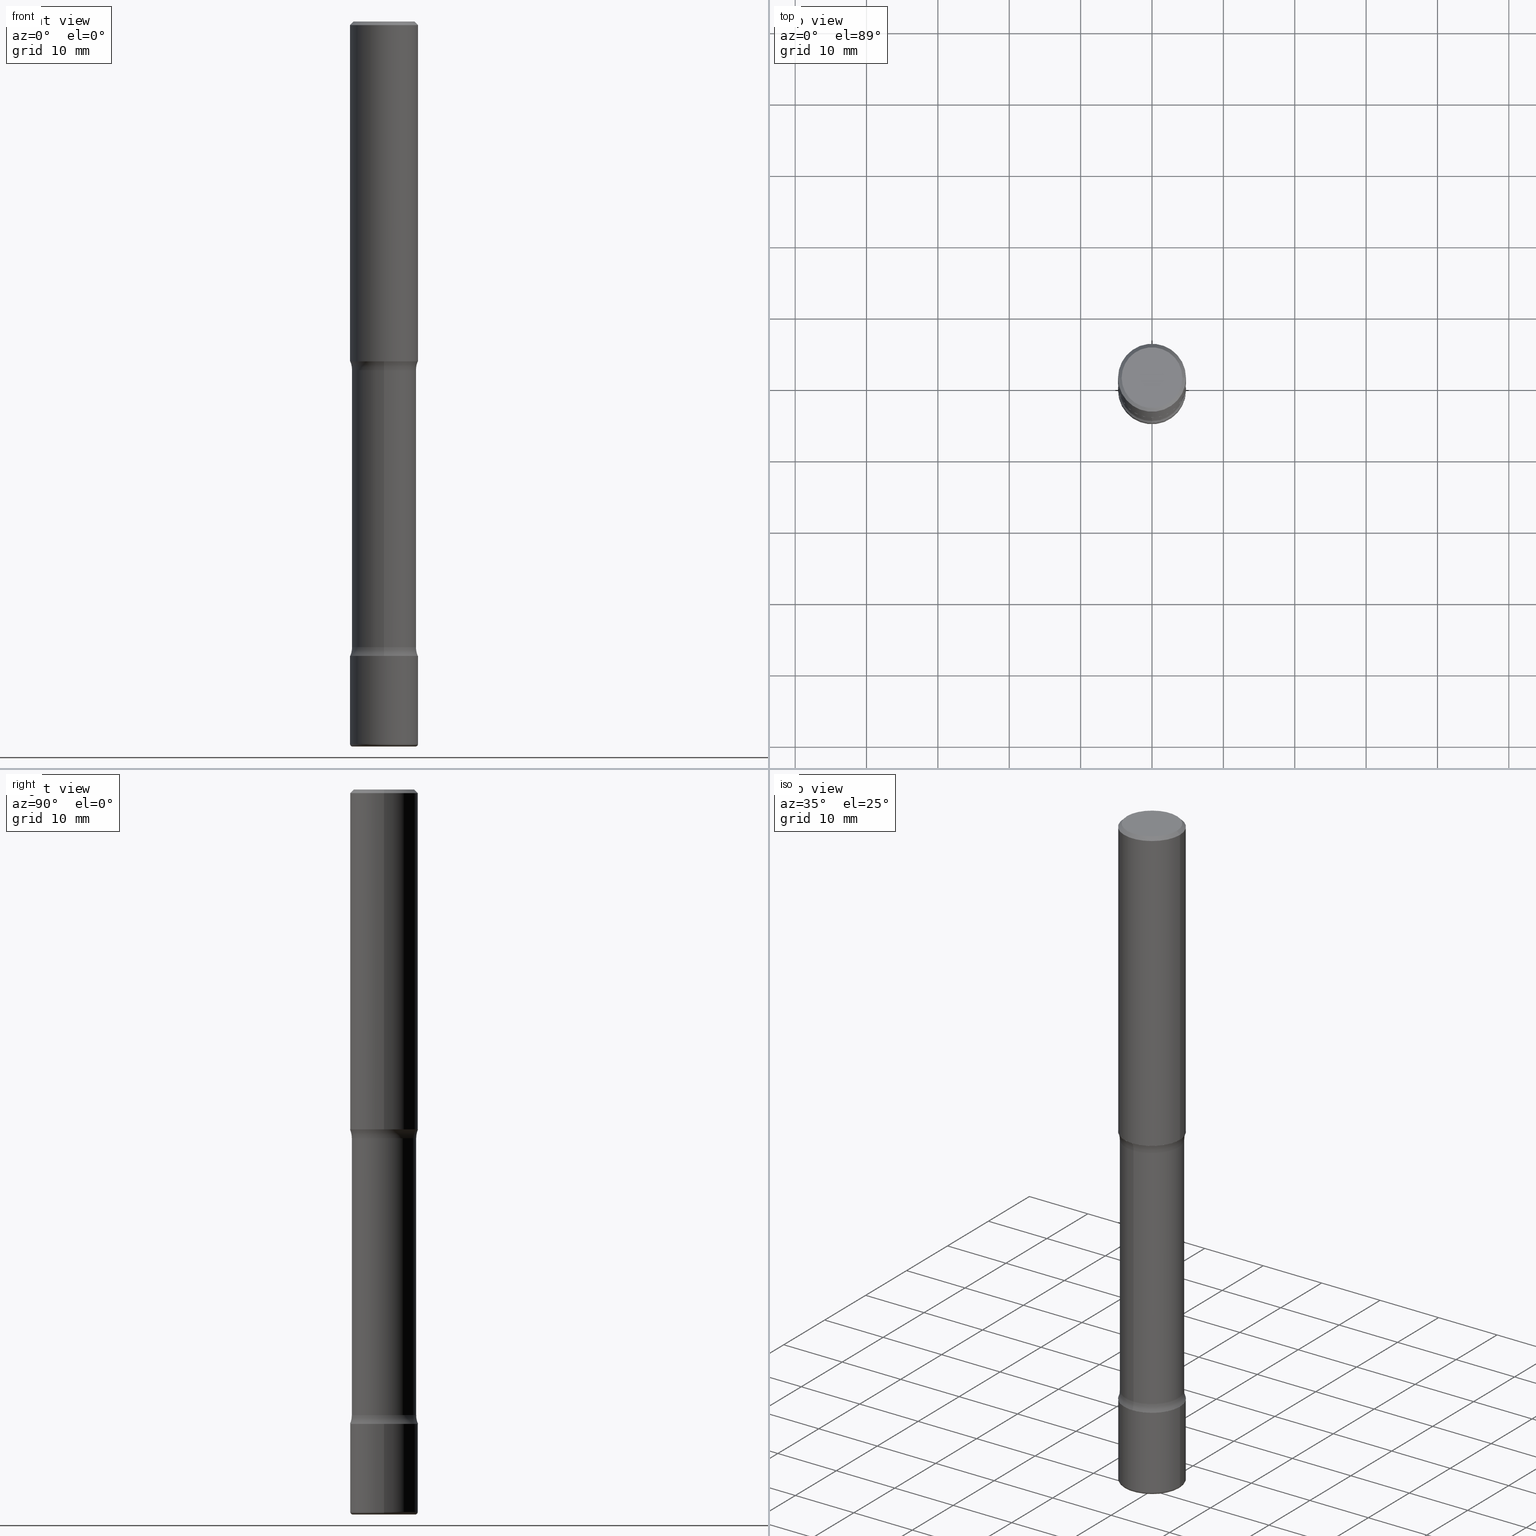
[diagram: canonical four-view strip — front | top / right | iso, engineering-drawing reading convention]
A machine part, canonical four-view strip (front | top / right | iso — engineering-drawing reading convention). The complete STEP part file that produces these views, byte-faithful:
ISO-10303-21;
HEADER;
FILE_DESCRIPTION (( 'STEP AP203' ),
    '1' );
FILE_NAME ('35793.STEP',
    '2024-03-01T23:25:41',
    ( '' ),
    ( '' ),
    'SwSTEP 2.0',
    'SolidWorks 2023',
    '' );
FILE_SCHEMA (( 'CONFIG_CONTROL_DESIGN' ));
ENDSEC;

DATA;
#1 = APPLICATION_PROTOCOL_DEFINITION ( 'international standard', 'config_control_design', 1994, #519 ) ;
#2 = MANIFOLD_SOLID_BREP ( 'Body-Move/Copy2[2]', #513 ) ;
#3 = CALENDAR_DATE ( 2024, 1, 3 ) ;
#4 = DIRECTION ( 'NONE',  ( -2.445468806185136597E-29, 3.491481338843145583E-15, 1.000000000000000000 ) ) ;
#5 = EDGE_CURVE ( 'NONE', #248, #14, #41, .T. ) ;
#6 = AXIS2_PLACEMENT_3D ( 'NONE', #383, #325, #151 ) ;
#7 = APPROVAL_ROLE ( '' ) ;
#8 = LINE ( 'NONE', #174, #49 ) ;
#9 = DIRECTION ( 'NONE',  ( -2.445468806185136597E-29, 3.491481338843145583E-15, 1.000000000000000000 ) ) ;
#10 = DIRECTION ( 'NONE',  ( 1.000000000000000000, -6.982962677686270655E-15, 0.000000000000000000 ) ) ;
#11 = CIRCLE ( 'NONE', #415, 0.1875000000000001943 ) ;
#12 = MANIFOLD_SOLID_BREP ( 'Body-Move/Copy2[4]', #197 ) ;
#13 = CARTESIAN_POINT ( 'NONE',  ( -0.1674999999999999267, 1.204561061900880258E-15, 8.537024980192521029E-18 ) ) ;
#14 = VERTEX_POINT ( 'NONE', #128 ) ;
#15 = FACE_OUTER_BOUND ( 'NONE', #431, .T. ) ;
#16 = ORIENTED_EDGE ( 'NONE', *, *, #39, .T. ) ;
#17 = LINE ( 'NONE', #416, #370 ) ;
#18 = ORIENTED_EDGE ( 'NONE', *, *, #395, .F. ) ;
#19 = ADVANCED_FACE ( 'NONE', ( #30 ), #335, .F. ) ;
#20 = AXIS2_PLACEMENT_3D ( 'NONE', #509, #79, #554 ) ;
#21 = AXIS2_PLACEMENT_3D ( 'NONE', #101, #60, #467 ) ;
#22 = DIRECTION ( 'NONE',  ( 2.612387241267746127E-29, -3.252444639397522477E-15, -1.000000000000000000 ) ) ;
#23 = ORIENTED_EDGE ( 'NONE', *, *, #168, .T. ) ;
#24 = CIRCLE ( 'NONE', #188, 0.1250000000000000278 ) ;
#25 = LINE ( 'NONE', #58, #299 ) ;
#26 = ORIENTED_EDGE ( 'NONE', *, *, #5, .T. ) ;
#27 = DIRECTION ( 'NONE',  ( -1.000000000000000000, 6.982962677686266711E-15, 0.000000000000000000 ) ) ;
#28 = ADVANCED_FACE ( 'NONE', ( #439 ), #81, .F. ) ;
#29 = ADVANCED_FACE ( 'NONE', ( #387 ), #441, .T. ) ;
#30 = FACE_OUTER_BOUND ( 'NONE', #150, .T. ) ;
#31 = VECTOR ( 'NONE', #87, 39.37007874015748143 ) ;
#32 = TOROIDAL_SURFACE ( 'NONE', #6, 0.3025000000000003797, 0.1250000000000000278 ) ;
#33 = VERTEX_POINT ( 'NONE', #477 ) ;
#34 = CIRCLE ( 'NONE', #116, 0.1875000000000001110 ) ;
#35 = LINE ( 'NONE', #301, #83 ) ;
#36 = DIRECTION ( 'NONE',  ( 6.982962677686265922E-15, 1.000000000000000000, -3.252444639397522477E-15 ) ) ;
#37 = CARTESIAN_POINT ( 'NONE',  ( 4.890937612370283668E-31, -6.982962677686305168E-17, -0.02000000000000004205 ) ) ;
#38 = DIRECTION ( 'NONE',  ( 2.445468806185136597E-29, -3.491481338843145583E-15, -1.000000000000000000 ) ) ;
#39 = EDGE_CURVE ( 'NONE', #59, #429, #356, .T. ) ;
#40 = DIRECTION ( 'NONE',  ( -1.000000000000000000, 6.982962677686265922E-15, -4.876176775795935793E-29 ) ) ;
#41 = CIRCLE ( 'NONE', #177, 0.1775000000000003242 ) ;
#42 = ORIENTED_EDGE ( 'NONE', *, *, #249, .F. ) ;
#43 = ORGANIZATION ( 'UNSPECIFIED', 'UNSPECIFIED', '' ) ;
#44 = APPROVAL_STATUS ( 'not_yet_approved' ) ;
#45 = LINE ( 'NONE', #218, #31 ) ;
#46 = APPLICATION_PROTOCOL_DEFINITION ( 'international standard', 'config_control_design', 1994, #210 ) ;
#47 = DIRECTION ( 'NONE',  ( 2.612387241267746127E-29, -3.252444639397522477E-15, -1.000000000000000000 ) ) ;
#48 = DIRECTION ( 'NONE',  ( 1.000000000000000000, -6.860497997771530774E-15, 4.843726234912691247E-29 ) ) ;
#49 = VECTOR ( 'NONE', #212, 39.37007874015748143 ) ;
#50 = APPROVAL_DATE_TIME ( #173, #144 ) ;
#51 = DIRECTION ( 'NONE',  ( 1.000000000000000000, -6.982962677686269077E-15, 0.000000000000000000 ) ) ;
#52 = EDGE_CURVE ( 'NONE', #231, #302, #242, .T. ) ;
#53 = PERSON_AND_ORGANIZATION ( #333, #43 ) ;
#54 = CARTESIAN_POINT ( 'NONE',  ( 9.781875224740546387E-29, -1.396592535537258233E-14, -4.000000000000000000 ) ) ;
#55 = DIRECTION ( 'NONE',  ( -2.445468806185136597E-29, 3.491481338843145583E-15, 1.000000000000000000 ) ) ;
#56 = AXIS2_PLACEMENT_3D ( 'NONE', #70, #340, #36 ) ;
#57 = APPROVAL_PERSON_ORGANIZATION ( #486, #291, #309 ) ;
#58 = CARTESIAN_POINT ( 'NONE',  ( 1.239475875289412093E-15, 0.1774999999999863354, -4.000000000000000888 ) ) ;
#59 = VERTEX_POINT ( 'NONE', #342 ) ;
#60 = DIRECTION ( 'NONE',  ( 1.000000000000000000, -6.860497997771530774E-15, 4.843726234912691247E-29 ) ) ;
#61 = VERTEX_POINT ( 'NONE', #246 ) ;
#62 = DIRECTION ( 'NONE',  ( -2.445468806185136597E-29, 3.491481338843145583E-15, 1.000000000000000000 ) ) ;
#63 = ORIENTED_EDGE ( 'NONE', *, *, #281, .T. ) ;
#64 = CIRCLE ( 'NONE', #156, 0.1874999999999999722 ) ;
#65 = CC_DESIGN_APPROVAL ( #427, ( #518 ) ) ;
#66 = DIRECTION ( 'NONE',  ( -2.445468806185136877E-29, 3.491481338843145188E-15, 1.000000000000000000 ) ) ;
#67 = ORIENTED_EDGE ( 'NONE', *, *, #152, .T. ) ;
#68 = ADVANCED_FACE ( 'NONE', ( #120 ), #405, .T. ) ;
#69 = FACE_OUTER_BOUND ( 'NONE', #324, .T. ) ;
#70 = CARTESIAN_POINT ( 'NONE',  ( 8.439337806507044109E-29, -1.204913773141870678E-14, -3.451010205144336762 ) ) ;
#71 = DIRECTION ( 'NONE',  ( -2.612387241267746127E-29, 3.252444639397522083E-15, 1.000000000000000000 ) ) ;
#72 = DIRECTION ( 'NONE',  ( 2.612387241267746127E-29, -3.252444639397522477E-15, -1.000000000000000000 ) ) ;
#73 = CIRCLE ( 'NONE', #476, 0.1250000000000000278 ) ;
#74 =( LENGTH_UNIT ( ) NAMED_UNIT ( * ) SI_UNIT ( $, .METRE. ) );
#75 = VERTEX_POINT ( 'NONE', #533 ) ;
#76 = CARTESIAN_POINT ( 'NONE',  ( -0.1875000000000001388, -1.975910939003690393E-15, -1.874999999999999778 ) ) ;
#77 = CARTESIAN_POINT ( 'NONE',  ( 4.890937612370283668E-31, -6.982962677686305168E-17, -0.02000000000000004205 ) ) ;
#78 = DIRECTION ( 'NONE',  ( -2.445468806185136877E-29, 3.491481338843145188E-15, 1.000000000000000000 ) ) ;
#79 = DIRECTION ( 'NONE',  ( -1.000000000000000000, 6.982962677686265922E-15, -4.883557194083112340E-29 ) ) ;
#80 = CALENDAR_DATE ( 2024, 1, 3 ) ;
#81 = TOROIDAL_SURFACE ( 'NONE', #56, 0.3025000000000000466, 0.1250000000000000555 ) ;
#82 = CARTESIAN_POINT ( 'NONE',  ( 4.314011554587889791E-29, -6.934962146930033986E-15, -1.874999999999999556 ) ) ;
#83 = VECTOR ( 'NONE', #78, 39.37007874015748143 ) ;
#84 = EDGE_CURVE ( 'NONE', #14, #112, #73, .T. ) ;
#85 = CC_DESIGN_PERSON_AND_ORGANIZATION_ASSIGNMENT ( #403, #451, ( #518 ) ) ;
#86 = PERSON_AND_ORGANIZATION ( #333, #43 ) ;
#87 = DIRECTION ( 'NONE',  ( 2.612387241267746127E-29, -3.252444639397522083E-15, -1.000000000000000000 ) ) ;
#88 = ORIENTED_EDGE ( 'NONE', *, *, #100, .T. ) ;
#89 = COORDINATED_UNIVERSAL_TIME_OFFSET ( 5, 0, .BEHIND. ) ;
#90 = EDGE_CURVE ( 'NONE', #512, #302, #215, .T. ) ;
#91 = DIRECTION ( 'NONE',  ( -6.982962677686266711E-15, -1.000000000000000000, 3.491481338843145583E-15 ) ) ;
#92 = PERSON_AND_ORGANIZATION_ROLE ( 'design_owner' ) ;
#93 = CARTESIAN_POINT ( 'NONE',  ( -2.075300644325846078E-15, -0.3025000000000074851, -1.923989794855662350 ) ) ;
#94 = AXIS2_PLACEMENT_3D ( 'NONE', #200, #552, #394 ) ;
#95 = ORIENTED_EDGE ( 'NONE', *, *, #453, .F. ) ;
#96 = EDGE_CURVE ( 'NONE', #112, #61, #121, .T. ) ;
#97 = AXIS2_PLACEMENT_3D ( 'NONE', #37, #122, #478 ) ;
#98 = PERSON_AND_ORGANIZATION ( #333, #43 ) ;
#99 = LINE ( 'NONE', #447, #480 ) ;
#100 = EDGE_CURVE ( 'NONE', #231, #436, #408, .T. ) ;
#101 = CARTESIAN_POINT ( 'NONE',  ( -2.075300644325803874E-15, -0.3025000000000120925, -3.451010205144335430 ) ) ;
#102 = DIRECTION ( 'NONE',  ( 6.982962677686265922E-15, 1.000000000000000000, -3.078138584410437918E-15 ) ) ;
#103 = ORIENTED_EDGE ( 'NONE', *, *, #211, .F. ) ;
#104 = AXIS2_PLACEMENT_3D ( 'NONE', #411, #365, #529 ) ;
#105 = CC_DESIGN_SECURITY_CLASSIFICATION ( #276, ( #406 ) ) ;
#106 = DIRECTION ( 'NONE',  ( 2.612387241267746127E-29, -3.252444639397522083E-15, -1.000000000000000000 ) ) ;
#107 = ORIENTED_EDGE ( 'NONE', *, *, #96, .T. ) ;
#108 = SHAPE_DEFINITION_REPRESENTATION ( #326, #300 ) ;
#109 = CARTESIAN_POINT ( 'NONE',  ( 0.000000000000000000, 0.000000000000000000, 0.000000000000000000 ) ) ;
#110 = ORIENTED_EDGE ( 'NONE', *, *, #123, .T. ) ;
#111 = DIRECTION ( 'NONE',  ( 1.000000000000000000, -6.982962677686265922E-15, 0.000000000000000000 ) ) ;
#112 = VERTEX_POINT ( 'NONE', #267 ) ;
#113 = LOCAL_TIME ( 18, 25, 41.00000000000000000, #89 ) ;
#114 = CARTESIAN_POINT ( 'NONE',  ( 8.439337806507044109E-29, -1.204913773141870678E-14, -3.451010205144336762 ) ) ;
#115 = ORIENTED_EDGE ( 'NONE', *, *, #206, .T. ) ;
#116 = AXIS2_PLACEMENT_3D ( 'NONE', #175, #452, #51 ) ;
#117 = CARTESIAN_POINT ( 'NONE',  ( 8.559140821647978089E-29, -1.222018468595101092E-14, -3.500000000000000444 ) ) ;
#118 = ORIENTED_EDGE ( 'NONE', *, *, #413, .T. ) ;
#119 = DIRECTION ( 'NONE',  ( 6.982962677686265922E-15, 1.000000000000000000, -3.252444639397522477E-15 ) ) ;
#120 = FACE_OUTER_BOUND ( 'NONE', #375, .T. ) ;
#121 = CIRCLE ( 'NONE', #321, 0.1875000000000005551 ) ;
#122 = DIRECTION ( 'NONE',  ( -2.445468806185136597E-29, 3.491481338843145583E-15, 1.000000000000000000 ) ) ;
#123 = EDGE_CURVE ( 'NONE', #194, #436, #34, .T. ) ;
#124 = ORIENTED_EDGE ( 'NONE', *, *, #152, .F. ) ;
#125 = DIRECTION ( 'NONE',  ( -2.438088387897960049E-29, 3.491481338843145188E-15, 1.000000000000000000 ) ) ;
#126 = ORIENTED_EDGE ( 'NONE', *, *, #181, .T. ) ;
#127 = COORDINATED_UNIVERSAL_TIME_OFFSET ( 5, 0, .BEHIND. ) ;
#128 = CARTESIAN_POINT ( 'NONE',  ( 1.239475875289358844E-15, 0.1774999999999932188, -1.923989794855664126 ) ) ;
#129 = EDGE_CURVE ( 'NONE', #33, #423, #303, .T. ) ;
#130 = LENGTH_MEASURE_WITH_UNIT ( LENGTH_MEASURE( 0.02539999999999999897 ), #74 );
#131 = CARTESIAN_POINT ( 'NONE',  ( 9.745193192647770190E-29, -1.391355313528993565E-14, -3.985000000000000320 ) ) ;
#132 = AXIS2_PLACEMENT_3D ( 'NONE', #117, #159, #247 ) ;
#133 = ORIENTED_EDGE ( 'NONE', *, *, #129, .F. ) ;
#134 =( NAMED_UNIT ( * ) SI_UNIT ( $, .STERADIAN. ) SOLID_ANGLE_UNIT ( ) );
#135 = CARTESIAN_POINT ( 'NONE',  ( 2.112346210000142381E-15, 0.3024999999999932743, -1.923989794855664570 ) ) ;
#136 =( NAMED_UNIT ( * ) PLANE_ANGLE_UNIT ( ) SI_UNIT ( $, .RADIAN. ) );
#137 = DIRECTION ( 'NONE',  ( 2.612387241267746127E-29, -3.252444639397522477E-15, -1.000000000000000000 ) ) ;
#138 = CARTESIAN_POINT ( 'NONE',  ( 0.1875000000000001110, -1.352949018801718751E-14, -3.500000000000000444 ) ) ;
#139 = AXIS2_PLACEMENT_3D ( 'NONE', #270, #283, #465 ) ;
#140 = FACE_OUTER_BOUND ( 'NONE', #305, .T. ) ;
#141 = DIRECTION ( 'NONE',  ( 2.612387241267746127E-29, -3.252444639397522477E-15, -1.000000000000000000 ) ) ;
#142 = ORIENTED_EDGE ( 'NONE', *, *, #5, .F. ) ;
#143 = ADVANCED_FACE ( 'NONE', ( #140 ), #289, .T. ) ;
#144 = APPROVAL ( #252, 'UNSPECIFIED' ) ;
#145 = AXIS2_PLACEMENT_3D ( 'NONE', #77, #38, #397 ) ;
#146 = ORIENTED_EDGE ( 'NONE', *, *, #337, .T. ) ;
#147 = AXIS2_PLACEMENT_3D ( 'NONE', #502, #141, #323 ) ;
#148 = EDGE_CURVE ( 'NONE', #423, #380, #99, .T. ) ;
#149 = FACE_OUTER_BOUND ( 'NONE', #536, .T. ) ;
#150 = EDGE_LOOP ( 'NONE', ( #142, #23, #196, #258 ) ) ;
#151 = DIRECTION ( 'NONE',  ( 6.982962677686265922E-15, 1.000000000000000000, -3.252444639397522477E-15 ) ) ;
#152 = EDGE_CURVE ( 'NONE', #75, #429, #288, .T. ) ;
#153 = ORIENTED_EDGE ( 'NONE', *, *, #239, .T. ) ;
#154 = DIRECTION ( 'NONE',  ( 1.000000000000000000, -6.982962677686265922E-15, 4.876176775795935793E-29 ) ) ;
#155 = ORIENTED_EDGE ( 'NONE', *, *, #148, .F. ) ;
#156 = AXIS2_PLACEMENT_3D ( 'NONE', #484, #311, #255 ) ;
#157 = AXIS2_PLACEMENT_3D ( 'NONE', #114, #343, #119 ) ;
#158 = FACE_OUTER_BOUND ( 'NONE', #296, .T. ) ;
#159 = DIRECTION ( 'NONE',  ( 2.612387241267746127E-29, -3.252444639397522477E-15, -1.000000000000000000 ) ) ;
#160 = ORIENTED_EDGE ( 'NONE', *, *, #84, .T. ) ;
#161 = FACE_OUTER_BOUND ( 'NONE', #274, .T. ) ;
#162 = VERTEX_POINT ( 'NONE', #404 ) ;
#163 = CYLINDRICAL_SURFACE ( 'NONE', #468, 0.1875000000000000833 ) ;
#164 = AXIS2_PLACEMENT_3D ( 'NONE', #184, #226, #542 ) ;
#165 = ORIENTED_EDGE ( 'NONE', *, *, #148, .T. ) ;
#166 = COORDINATED_UNIVERSAL_TIME_OFFSET ( 5, 0, .BEHIND. ) ;
#167 = CARTESIAN_POINT ( 'NONE',  ( 4.441991869621149927E-29, -7.094298742593522572E-15, -1.923989794855663460 ) ) ;
#168 = EDGE_CURVE ( 'NONE', #248, #61, #24, .T. ) ;
#169 = CC_DESIGN_DATE_AND_TIME_ASSIGNMENT ( #366, #491, ( #518 ) ) ;
#170 = CARTESIAN_POINT ( 'NONE',  ( -0.1874999999999999722, -1.258128550573974937E-14, -3.985000000000000320 ) ) ;
#171 = SECURITY_CLASSIFICATION_LEVEL ( 'unclassified' ) ;
#172 = CARTESIAN_POINT ( 'NONE',  ( 8.431160506614718513E-29, -1.206084809028752233E-14, -3.451010205144336762 ) ) ;
#173 = DATE_AND_TIME ( #80, #398 ) ;
#174 = CARTESIAN_POINT ( 'NONE',  ( 0.1875000000000000833, -1.309305502066175600E-15, 9.142831454617383816E-30 ) ) ;
#175 = CARTESIAN_POINT ( 'NONE',  ( 8.559140821647978089E-29, -1.222018468595101092E-14, -3.500000000000000444 ) ) ;
#176 = CARTESIAN_POINT ( 'NONE',  ( 0.1725000000000000977, -1.511811419719081728E-14, -3.985000000000000320 ) ) ;
#177 = AXIS2_PLACEMENT_3D ( 'NONE', #167, #352, #251 ) ;
#178 = LOCAL_TIME ( 18, 25, 41.00000000000000000, #127 ) ;
#179 = CARTESIAN_POINT ( 'NONE',  ( 1.239475875289396118E-15, 0.1774999999999878897, -3.451010205144337206 ) ) ;
#180 = AXIS2_PLACEMENT_3D ( 'NONE', #172, #47, #314 ) ;
#181 = EDGE_CURVE ( 'NONE', #504, #479, #11, .T. ) ;
#182 = ORIENTED_EDGE ( 'NONE', *, *, #395, .T. ) ;
#183 = CC_DESIGN_PERSON_AND_ORGANIZATION_ASSIGNMENT ( #98, #256, ( #406 ) ) ;
#184 = CARTESIAN_POINT ( 'NONE',  ( 6.492893269684092535E-29, -3.814679516666635883E-15, -1.874999999999999556 ) ) ;
#185 = ORIENTED_EDGE ( 'NONE', *, *, #268, .T. ) ;
#186 = DIRECTION ( 'NONE',  ( 0.7071067811865476838, -7.319954787623257623E-15, -0.7071067811865473507 ) ) ;
#187 = ORIENTED_EDGE ( 'NONE', *, *, #510, .F. ) ;
#188 = AXIS2_PLACEMENT_3D ( 'NONE', #93, #48, #488 ) ;
#189 = CIRCLE ( 'NONE', #498, 0.1774999999999999634 ) ;
#190 = DIRECTION ( 'NONE',  ( -2.445468806185136597E-29, 3.491481338843145583E-15, 1.000000000000000000 ) ) ;
#191 = EDGE_LOOP ( 'NONE', ( #556, #146, #538, #332 ) ) ;
#192 = DESIGN_CONTEXT ( 'detailed design', #210, 'design' ) ;
#193 = DIRECTION ( 'NONE',  ( 1.000000000000000000, -6.982962677686265922E-15, 4.876502603340347460E-29 ) ) ;
#194 = VERTEX_POINT ( 'NONE', #138 ) ;
#195 = DIRECTION ( 'NONE',  ( 2.612387241267746127E-29, -3.252444639397522477E-15, -1.000000000000000000 ) ) ;
#196 = ORIENTED_EDGE ( 'NONE', *, *, #269, .T. ) ;
#197 = CLOSED_SHELL ( 'NONE', ( #443, #521, #19, #376, #355, #503, #28, #386 ) ) ;
#198 = CIRCLE ( 'NONE', #298, 0.1875000000000000555 ) ;
#199 = TOROIDAL_SURFACE ( 'NONE', #157, 0.3025000000000000466, 0.1250000000000000555 ) ;
#200 = CARTESIAN_POINT ( 'NONE',  ( 9.745193192647770190E-29, -1.391355313528993565E-14, -3.985000000000000320 ) ) ;
#201 = CC_DESIGN_PERSON_AND_ORGANIZATION_ASSIGNMENT ( #315, #92, ( #421 ) ) ;
#202 = CARTESIAN_POINT ( 'NONE',  ( 0.000000000000000000, 0.000000000000000000, 0.000000000000000000 ) ) ;
#203 = ORIENTED_EDGE ( 'NONE', *, *, #100, .F. ) ;
#204 = CARTESIAN_POINT ( 'NONE',  ( -0.1725000000000000977, -1.268786691610376213E-14, -3.985000000000000320 ) ) ;
#205 = ORIENTED_EDGE ( 'NONE', *, *, #338, .T. ) ;
#206 = EDGE_CURVE ( 'NONE', #512, #162, #317, .T. ) ;
#207 = CARTESIAN_POINT ( 'NONE',  ( -1.286343374582076971E-15, -0.1875000000000123512, -3.500000000000000000 ) ) ;
#208 = AXIS2_PLACEMENT_3D ( 'NONE', #236, #430, #27 ) ;
#209 = ORIENTED_EDGE ( 'NONE', *, *, #123, .F. ) ;
#210 = APPLICATION_CONTEXT ( 'configuration controlled 3d designs of mechanical parts and assemblies' ) ;
#211 = EDGE_CURVE ( 'NONE', #265, #380, #64, .T. ) ;
#212 = DIRECTION ( 'NONE',  ( -2.445468806185136877E-29, 3.491481338843145188E-15, 1.000000000000000000 ) ) ;
#213 = CALENDAR_DATE ( 2024, 1, 3 ) ;
#214 = DIRECTION ( 'NONE',  ( -6.982962677686265133E-15, -1.000000000000000000, 0.000000000000000000 ) ) ;
#215 = CIRCLE ( 'NONE', #377, 0.01499999999999980516 ) ;
#216 = CALENDAR_DATE ( 2024, 1, 3 ) ;
#217 = AXIS2_PLACEMENT_3D ( 'NONE', #54, #369, #10 ) ;
#218 = CARTESIAN_POINT ( 'NONE',  ( -1.217738394604349018E-15, -0.1775000000000139799, -4.000000000000000000 ) ) ;
#219 = AXIS2_PLACEMENT_3D ( 'NONE', #473, #399, #432 ) ;
#220 = CARTESIAN_POINT ( 'NONE',  ( 4.585254011597130558E-29, -6.546527510330897918E-15, -1.874999999999999778 ) ) ;
#221 = DIRECTION ( 'NONE',  ( -1.000000000000000000, 6.982962677686265922E-15, -4.883557194083112340E-29 ) ) ;
#222 = EDGE_CURVE ( 'NONE', #302, #231, #198, .T. ) ;
#223 = CC_DESIGN_PERSON_AND_ORGANIZATION_ASSIGNMENT ( #53, #446, ( #406 ) ) ;
#224 = CARTESIAN_POINT ( 'NONE',  ( 0.000000000000000000, 0.000000000000000000, 0.000000000000000000 ) ) ;
#225 = EDGE_LOOP ( 'NONE', ( #115, #418, #284, #237 ) ) ;
#226 = DIRECTION ( 'NONE',  ( 2.612387241267746127E-29, -3.252444639397522083E-15, -1.000000000000000000 ) ) ;
#227 = EDGE_LOOP ( 'NONE', ( #328, #362, #16, #182 ) ) ;
#228 = CARTESIAN_POINT ( 'NONE',  ( -0.1874999999999999722, 1.239475875289311710E-15, -0.02000000000000004205 ) ) ;
#229 = ORIENTED_EDGE ( 'NONE', *, *, #510, .T. ) ;
#230 = DIRECTION ( 'NONE',  ( 1.000000000000000000, -6.982962677686266711E-15, 4.876176775795935793E-29 ) ) ;
#231 = VERTEX_POINT ( 'NONE', #170 ) ;
#232 = EDGE_CURVE ( 'NONE', #162, #512, #345, .T. ) ;
#233 = AXIS2_PLACEMENT_3D ( 'NONE', #224, #381, #419 ) ;
#234 = CARTESIAN_POINT ( 'NONE',  ( 0.1874999999999999722, -1.522285863735611381E-14, -3.985000000000000320 ) ) ;
#235 = ORIENTED_EDGE ( 'NONE', *, *, #337, .F. ) ;
#236 = CARTESIAN_POINT ( 'NONE',  ( 4.890937612370283668E-31, -6.982962677686305168E-17, -0.02000000000000004205 ) ) ;
#237 = ORIENTED_EDGE ( 'NONE', *, *, #90, .F. ) ;
#238 = DIRECTION ( 'NONE',  ( 2.438088387897960049E-29, -3.491481338843145188E-15, -1.000000000000000000 ) ) ;
#239 = EDGE_CURVE ( 'NONE', #248, #75, #45, .T. ) ;
#240 = CC_DESIGN_DATE_AND_TIME_ASSIGNMENT ( #307, #558, ( #276 ) ) ;
#241 = CARTESIAN_POINT ( 'NONE',  ( 1.862889787094097068E-28, -1.296485384755703517E-15, -4.000000000000000000 ) ) ;
#242 = CIRCLE ( 'NONE', #94, 0.1875000000000000555 ) ;
#243 = CIRCLE ( 'NONE', #379, 0.1875000000000005551 ) ;
#244 = CC_DESIGN_APPROVAL ( #144, ( #276 ) ) ;
#245 = DIRECTION ( 'NONE',  ( 6.982962677686266711E-15, 1.000000000000000000, -3.078138584410434763E-15 ) ) ;
#246 = CARTESIAN_POINT ( 'NONE',  ( -1.286343374582122528E-15, -0.1875000000000074662, -1.874999999999998890 ) ) ;
#247 = DIRECTION ( 'NONE',  ( 6.982962677686266711E-15, 1.000000000000000000, -2.913971193241879189E-15 ) ) ;
#248 = VERTEX_POINT ( 'NONE', #257 ) ;
#249 = EDGE_CURVE ( 'NONE', #504, #265, #8, .T. ) ;
#250 = DIRECTION ( 'NONE',  ( 1.000000000000000000, -6.982962677686266711E-15, 4.876176775795935793E-29 ) ) ;
#251 = DIRECTION ( 'NONE',  ( 6.982962677686265133E-15, 1.000000000000000000, -3.078138584410432002E-15 ) ) ;
#252 = APPROVAL_STATUS ( 'not_yet_approved' ) ;
#253 = AXIS2_PLACEMENT_3D ( 'NONE', #109, #62, #230 ) ;
#254 = AXIS2_PLACEMENT_3D ( 'NONE', #280, #535, #111 ) ;
#255 = DIRECTION ( 'NONE',  ( 1.000000000000000000, -6.982962677686266711E-15, 0.000000000000000000 ) ) ;
#256 = PERSON_AND_ORGANIZATION_ROLE ( 'creator' ) ;
#257 = CARTESIAN_POINT ( 'NONE',  ( -1.252040884593263284E-15, -0.1775000000000074296, -1.923989794855663016 ) ) ;
#258 = ORIENTED_EDGE ( 'NONE', *, *, #84, .F. ) ;
#259 = PERSON_AND_ORGANIZATION ( #333, #43 ) ;
#260 = DIRECTION ( 'NONE',  ( -2.445468806185136597E-29, 3.491481338843145583E-15, 1.000000000000000000 ) ) ;
#261 = AXIS2_PLACEMENT_3D ( 'NONE', #241, #433, #549 ) ;
#262 = APPROVAL_ROLE ( '' ) ;
#263 = CARTESIAN_POINT ( 'NONE',  ( 4.314011554587889791E-29, -6.934962146930033986E-15, -1.874999999999999556 ) ) ;
#264 = CIRCLE ( 'NONE', #450, 0.01499999999999980516 ) ;
#265 = VERTEX_POINT ( 'NONE', #402 ) ;
#266 = PERSON_AND_ORGANIZATION_ROLE ( 'classification_officer' ) ;
#267 = CARTESIAN_POINT ( 'NONE',  ( 1.309305502066221551E-15, 0.1874999999999935885, -1.875000000000000000 ) ) ;
#268 = EDGE_CURVE ( 'NONE', #14, #248, #358, .T. ) ;
#269 = EDGE_CURVE ( 'NONE', #61, #112, #243, .T. ) ;
#270 = CARTESIAN_POINT ( 'NONE',  ( 9.865334442281852273E-29, -1.384640700564977196E-14, -4.000000000000000888 ) ) ;
#271 = EDGE_LOOP ( 'NONE', ( #287, #26, #336, #124 ) ) ;
#272 = FACE_OUTER_BOUND ( 'NONE', #499, .T. ) ;
#273 = CLOSED_SHELL ( 'NONE', ( #437, #306, #29, #143, #349, #534 ) ) ;
#274 = EDGE_LOOP ( 'NONE', ( #63, #426 ) ) ;
#275 = AXIS2_PLACEMENT_3D ( 'NONE', #445, #260, #527 ) ;
#276 = SECURITY_CLASSIFICATION ( '', '', #171 ) ;
#277 = UNCERTAINTY_MEASURE_WITH_UNIT (LENGTH_MEASURE( 1.000000000000000082E-05 ), #401, 'distance_accuracy_value', 'NONE');
#278 = CARTESIAN_POINT ( 'NONE',  ( 8.559140821647978089E-29, -1.222018468595101092E-14, -3.500000000000000444 ) ) ;
#279 = ORIENTED_EDGE ( 'NONE', *, *, #413, .F. ) ;
#280 = CARTESIAN_POINT ( 'NONE',  ( 4.585254011597130558E-29, -6.546527510330897918E-15, -1.874999999999999778 ) ) ;
#281 = EDGE_CURVE ( 'NONE', #423, #33, #310, .T. ) ;
#282 = ORIENTED_EDGE ( 'NONE', *, *, #470, .F. ) ;
#283 = DIRECTION ( 'NONE',  ( 2.612387241267746127E-29, -3.252444639397522477E-15, -1.000000000000000000 ) ) ;
#284 = ORIENTED_EDGE ( 'NONE', *, *, #222, .F. ) ;
#285 = AXIS2_PLACEMENT_3D ( 'NONE', #428, #497, #544 ) ;
#286 = DIRECTION ( 'NONE',  ( 7.105427357601001859E-15, 1.000000000000000000, -3.491481338843145583E-15 ) ) ;
#287 = ORIENTED_EDGE ( 'NONE', *, *, #239, .F. ) ;
#288 = CIRCLE ( 'NONE', #180, 0.1774999999999999634 ) ;
#289 = TOROIDAL_SURFACE ( 'NONE', #461, 0.1725000000000000977, 0.01499999999999982250 ) ;
#290 = EDGE_CURVE ( 'NONE', #545, #75, #557, .T. ) ;
#291 = APPROVAL ( #44, 'UNSPECIFIED' ) ;
#292 = PLANE ( 'NONE',  #219 ) ;
#293 = ORIENTED_EDGE ( 'NONE', *, *, #489, .T. ) ;
#294 = EDGE_CURVE ( 'NONE', #479, #380, #456, .T. ) ;
#295 = FACE_OUTER_BOUND ( 'NONE', #412, .T. ) ;
#296 = EDGE_LOOP ( 'NONE', ( #187, #541, #67, #330 ) ) ;
#297 = AXIS2_PLACEMENT_3D ( 'NONE', #308, #72, #344 ) ;
#298 = AXIS2_PLACEMENT_3D ( 'NONE', #131, #360, #449 ) ;
#299 = VECTOR ( 'NONE', #106, 39.37007874015748143 ) ;
#300 = ADVANCED_BREP_SHAPE_REPRESENTATION ( '35793', ( #391, #2, #12, #495 ), #319 ) ;
#301 = CARTESIAN_POINT ( 'NONE',  ( 0.1875000000000000833, -1.309305502066175600E-15, 9.142831454617383816E-30 ) ) ;
#302 = VERTEX_POINT ( 'NONE', #234 ) ;
#303 = CIRCLE ( 'NONE', #409, 0.1674999999999999267 ) ;
#304 = CARTESIAN_POINT ( 'NONE',  ( 9.865334442281852273E-29, -1.384640700564977196E-14, -4.000000000000000888 ) ) ;
#305 = EDGE_LOOP ( 'NONE', ( #95, #520, #524, #384 ) ) ;
#306 = ADVANCED_FACE ( 'NONE', ( #374 ), #320, .T. ) ;
#307 = DATE_AND_TIME ( #454, #442 ) ;
#308 = CARTESIAN_POINT ( 'NONE',  ( 4.442756628751107666E-29, -7.093203563992037235E-15, -1.923989794855663460 ) ) ;
#309 = APPROVAL_ROLE ( '' ) ;
#310 = CIRCLE ( 'NONE', #496, 0.1674999999999999267 ) ;
#311 = DIRECTION ( 'NONE',  ( -2.445468806185136597E-29, 3.491481338843145583E-15, 1.000000000000000000 ) ) ;
#312 = ORIENTED_EDGE ( 'NONE', *, *, #367, .T. ) ;
#313 = APPROVAL_STATUS ( 'not_yet_approved' ) ;
#314 = DIRECTION ( 'NONE',  ( 6.982962677686265922E-15, 1.000000000000000000, -3.078138584410437918E-15 ) ) ;
#315 = PERSON_AND_ORGANIZATION ( #333, #43 ) ;
#316 = CARTESIAN_POINT ( 'NONE',  ( -0.1875000000000000833, 1.332267629550188440E-15, -9.223003294227952194E-30 ) ) ;
#317 = CIRCLE ( 'NONE', #217, 0.1725000000000000699 ) ;
#318 = DIRECTION ( 'NONE',  ( 1.000000000000000000, -6.982962677686228845E-15, 0.000000000000000000 ) ) ;
#319 =( GEOMETRIC_REPRESENTATION_CONTEXT ( 3 ) GLOBAL_UNCERTAINTY_ASSIGNED_CONTEXT ( ( #277 ) ) GLOBAL_UNIT_ASSIGNED_CONTEXT ( ( #401, #136, #134 ) ) REPRESENTATION_CONTEXT ( 'NONE', 'WORKASPACE' ) );
#320 = TOROIDAL_SURFACE ( 'NONE', #285, 0.1725000000000000977, 0.01499999999999982250 ) ;
#321 = AXIS2_PLACEMENT_3D ( 'NONE', #82, #137, #353 ) ;
#322 = FACE_OUTER_BOUND ( 'NONE', #271, .T. ) ;
#323 = DIRECTION ( 'NONE',  ( 6.982962677686266711E-15, 1.000000000000000000, -2.913971193241879189E-15 ) ) ;
#324 = EDGE_LOOP ( 'NONE', ( #279, #373, #165, #293 ) ) ;
#325 = DIRECTION ( 'NONE',  ( 2.612387241267746127E-29, -3.252444639397522477E-15, -1.000000000000000000 ) ) ;
#326 = PRODUCT_DEFINITION_SHAPE ( 'NONE', 'NONE',  #518 ) ;
#327 = CIRCLE ( 'NONE', #132, 0.1875000000000001110 ) ;
#328 = ORIENTED_EDGE ( 'NONE', *, *, #290, .F. ) ;
#329 = CARTESIAN_POINT ( 'NONE',  ( -0.1875000000000000833, 1.332267629550188440E-15, -9.223003294227952194E-30 ) ) ;
#330 = ORIENTED_EDGE ( 'NONE', *, *, #39, .F. ) ;
#331 = DIRECTION ( 'NONE',  ( 2.612387241267746127E-29, -3.252444639397522477E-15, -1.000000000000000000 ) ) ;
#332 = ORIENTED_EDGE ( 'NONE', *, *, #489, .F. ) ;
#333 = PERSON ( 'UNSPECIFIED', 'UNSPECIFIED', 'UNSPECIFIED', ('UNSPECIFIED'), ('UNSPECIFIED'), ('UNSPECIFIED') ) ;
#334 = DIRECTION ( 'NONE',  ( 1.000000000000000000, -6.982962677686266711E-15, 4.876176775795935793E-29 ) ) ;
#335 = TOROIDAL_SURFACE ( 'NONE', #297, 0.3025000000000003797, 0.1250000000000000278 ) ;
#336 = ORIENTED_EDGE ( 'NONE', *, *, #363, .T. ) ;
#337 = EDGE_CURVE ( 'NONE', #479, #504, #371, .T. ) ;
#338 = EDGE_CURVE ( 'NONE', #436, #194, #515, .T. ) ;
#339 = AXIS2_PLACEMENT_3D ( 'NONE', #440, #238, #40 ) ;
#340 = DIRECTION ( 'NONE',  ( 2.612387241267746127E-29, -3.252444639397522477E-15, -1.000000000000000000 ) ) ;
#341 = CYLINDRICAL_SURFACE ( 'NONE', #346, 0.1875000000000000833 ) ;
#342 = CARTESIAN_POINT ( 'NONE',  ( 1.309305502066261191E-15, 0.1874999999999878708, -3.500000000000000888 ) ) ;
#343 = DIRECTION ( 'NONE',  ( 2.612387241267746127E-29, -3.252444639397522477E-15, -1.000000000000000000 ) ) ;
#344 = DIRECTION ( 'NONE',  ( 6.982962677686265922E-15, 1.000000000000000000, -3.252444639397522477E-15 ) ) ;
#345 = CIRCLE ( 'NONE', #275, 0.1725000000000000699 ) ;
#346 = AXIS2_PLACEMENT_3D ( 'NONE', #555, #435, #334 ) ;
#347 = VECTOR ( 'NONE', #66, 39.37007874015748143 ) ;
#348 = PLANE ( 'NONE',  #339 ) ;
#349 = ADVANCED_FACE ( 'NONE', ( #272 ), #462, .T. ) ;
#350 = EDGE_LOOP ( 'NONE', ( #507, #235 ) ) ;
#351 = COORDINATED_UNIVERSAL_TIME_OFFSET ( 5, 0, .BEHIND. ) ;
#352 = DIRECTION ( 'NONE',  ( 2.612387241267746127E-29, -3.252444639397522477E-15, -1.000000000000000000 ) ) ;
#353 = DIRECTION ( 'NONE',  ( 6.982962677686265922E-15, 1.000000000000000000, -2.913971193241872089E-15 ) ) ;
#354 = ORIENTED_EDGE ( 'NONE', *, *, #211, .T. ) ;
#355 = ADVANCED_FACE ( 'NONE', ( #15 ), #459, .F. ) ;
#356 = CIRCLE ( 'NONE', #20, 0.1250000000000000555 ) ;
#357 = DIRECTION ( 'NONE',  ( 1.000000000000000000, 0.000000000000000000, 0.000000000000000000 ) ) ;
#358 = CIRCLE ( 'NONE', #104, 0.1775000000000003242 ) ;
#359 = APPROVAL_PERSON_ORGANIZATION ( #448, #144, #7 ) ;
#360 = DIRECTION ( 'NONE',  ( -2.445468806185136597E-29, 3.491481338843145583E-15, 1.000000000000000000 ) ) ;
#361 = VECTOR ( 'NONE', #455, 39.37007874015748143 ) ;
#362 = ORIENTED_EDGE ( 'NONE', *, *, #367, .F. ) ;
#363 = EDGE_CURVE ( 'NONE', #14, #429, #25, .T. ) ;
#364 = COORDINATED_UNIVERSAL_TIME_OFFSET ( 5, 0, .BEHIND. ) ;
#365 = DIRECTION ( 'NONE',  ( 2.612387241267746127E-29, -3.252444639397522477E-15, -1.000000000000000000 ) ) ;
#366 = DATE_AND_TIME ( #213, #178 ) ;
#367 = EDGE_CURVE ( 'NONE', #59, #545, #434, .T. ) ;
#368 = DIRECTION ( 'NONE',  ( 1.000000000000000000, -6.982962677686265922E-15, 0.000000000000000000 ) ) ;
#369 = DIRECTION ( 'NONE',  ( -2.445468806185136597E-29, 3.491481338843145583E-15, 1.000000000000000000 ) ) ;
#370 = VECTOR ( 'NONE', #186, 39.37007874015748143 ) ;
#371 = CIRCLE ( 'NONE', #254, 0.1875000000000001943 ) ;
#372 = CARTESIAN_POINT ( 'NONE',  ( -2.087702828670439639E-46, 2.980686340760894400E-32, 8.537024980200822558E-18 ) ) ;
#373 = ORIENTED_EDGE ( 'NONE', *, *, #281, .F. ) ;
#374 = FACE_OUTER_BOUND ( 'NONE', #225, .T. ) ;
#375 = EDGE_LOOP ( 'NONE', ( #133, #118, #354, #155 ) ) ;
#376 = ADVANCED_FACE ( 'NONE', ( #537 ), #32, .F. ) ;
#377 = AXIS2_PLACEMENT_3D ( 'NONE', #176, #91, #318 ) ;
#378 = CARTESIAN_POINT ( 'NONE',  ( -0.1875000000000001110, -1.173460128107028622E-14, -3.500000000000000444 ) ) ;
#379 = AXIS2_PLACEMENT_3D ( 'NONE', #263, #22, #540 ) ;
#380 = VERTEX_POINT ( 'NONE', #228 ) ;
#381 = DIRECTION ( 'NONE',  ( -2.445468806185136597E-29, 3.491481338843145583E-15, 1.000000000000000000 ) ) ;
#382 = EDGE_LOOP ( 'NONE', ( #185, #153, #18, #560 ) ) ;
#383 = CARTESIAN_POINT ( 'NONE',  ( 4.442756628751107666E-29, -7.093203563992037235E-15, -1.923989794855663460 ) ) ;
#384 = ORIENTED_EDGE ( 'NONE', *, *, #52, .F. ) ;
#385 = DIRECTION ( 'NONE',  ( -6.982962677686265922E-15, -1.000000000000000000, 3.252444639397522083E-15 ) ) ;
#386 = ADVANCED_FACE ( 'NONE', ( #322 ), #493, .T. ) ;
#387 = FACE_OUTER_BOUND ( 'NONE', #464, .T. ) ;
#388 = APPROVAL_PERSON_ORGANIZATION ( #86, #427, #262 ) ;
#389 = DIRECTION ( 'NONE',  ( -1.000000000000000000, 7.105427357600953738E-15, 0.000000000000000000 ) ) ;
#390 = ORIENTED_EDGE ( 'NONE', *, *, #206, .F. ) ;
#391 = MANIFOLD_SOLID_BREP ( 'Body-Move/Copy2[1]', #273 ) ;
#392 = DIMENSIONAL_EXPONENTS ( 1.000000000000000000, 0.000000000000000000, 0.000000000000000000, 0.000000000000000000, 0.000000000000000000, 0.000000000000000000, 0.000000000000000000 ) ;
#393 = FACE_OUTER_BOUND ( 'NONE', #501, .T. ) ;
#394 = DIRECTION ( 'NONE',  ( 1.000000000000000000, -6.982962677686270655E-15, 0.000000000000000000 ) ) ;
#395 = EDGE_CURVE ( 'NONE', #429, #75, #189, .T. ) ;
#396 = FACE_OUTER_BOUND ( 'NONE', #191, .T. ) ;
#397 = DIRECTION ( 'NONE',  ( -1.000000000000000000, 6.982962677686266711E-15, 0.000000000000000000 ) ) ;
#398 = LOCAL_TIME ( 18, 25, 41.00000000000000000, #364 ) ;
#399 = DIRECTION ( 'NONE',  ( 2.438088387897960049E-29, -3.491481338843145188E-15, -1.000000000000000000 ) ) ;
#400 = ORIENTED_EDGE ( 'NONE', *, *, #52, .T. ) ;
#401 =( CONVERSION_BASED_UNIT ( 'INCH', #130 ) LENGTH_UNIT ( ) NAMED_UNIT ( #392 ) );
#402 = CARTESIAN_POINT ( 'NONE',  ( 0.1874999999999999722, -1.356173001359025269E-15, -0.02000000000000004205 ) ) ;
#403 = PERSON_AND_ORGANIZATION ( #333, #43 ) ;
#404 = CARTESIAN_POINT ( 'NONE',  ( -0.1725000000000000699, -1.266076232096307910E-14, -4.000000000000000000 ) ) ;
#405 = CONICAL_SURFACE ( 'NONE', #145, 0.1874999999999999722, 0.7853981633974485010 ) ;
#406 = PRODUCT_DEFINITION_FORMATION_WITH_SPECIFIED_SOURCE ( 'ANY', '', #421, .NOT_KNOWN. ) ;
#407 = DATE_AND_TIME ( #3, #113 ) ;
#408 = LINE ( 'NONE', #316, #361 ) ;
#409 = AXIS2_PLACEMENT_3D ( 'NONE', #487, #9, #485 ) ;
#410 = DIRECTION ( 'NONE',  ( 0.000000000000000000, 0.000000000000000000, 1.000000000000000000 ) ) ;
#411 = CARTESIAN_POINT ( 'NONE',  ( 4.441991869621149927E-29, -7.094298742593522572E-15, -1.923989794855663460 ) ) ;
#412 = EDGE_LOOP ( 'NONE', ( #312, #229 ) ) ;
#413 = EDGE_CURVE ( 'NONE', #33, #265, #17, .T. ) ;
#414 = DIRECTION ( 'NONE',  ( 1.000000000000000000, -6.982962677686265922E-15, 4.883557194083112901E-29 ) ) ;
#415 = AXIS2_PLACEMENT_3D ( 'NONE', #220, #4, #368 ) ;
#416 = CARTESIAN_POINT ( 'NONE',  ( 0.1874999999999999722, -1.356173001359025269E-15, -0.02000000000000004205 ) ) ;
#417 = AXIS2_PLACEMENT_3D ( 'NONE', #278, #55, #424 ) ;
#418 = ORIENTED_EDGE ( 'NONE', *, *, #453, .T. ) ;
#419 = DIRECTION ( 'NONE',  ( 1.000000000000000000, -6.982962677686266711E-15, 4.876176775795935793E-29 ) ) ;
#420 = ORIENTED_EDGE ( 'NONE', *, *, #222, .T. ) ;
#421 = PRODUCT ( '35793', '35793', '', ( #526 ) ) ;
#422 = CARTESIAN_POINT ( 'NONE',  ( 8.431160506614718513E-29, -1.206084809028752233E-14, -3.451010205144336762 ) ) ;
#423 = VERTEX_POINT ( 'NONE', #13 ) ;
#424 = DIRECTION ( 'NONE',  ( 1.000000000000000000, -6.982962677686269077E-15, 0.000000000000000000 ) ) ;
#425 = AXIS2_PLACEMENT_3D ( 'NONE', #547, #71, #385 ) ;
#426 = ORIENTED_EDGE ( 'NONE', *, *, #129, .T. ) ;
#427 = APPROVAL ( #313, 'UNSPECIFIED' ) ;
#428 = CARTESIAN_POINT ( 'NONE',  ( 9.745193192647770190E-29, -1.391355313528993565E-14, -3.985000000000000320 ) ) ;
#429 = VERTEX_POINT ( 'NONE', #179 ) ;
#430 = DIRECTION ( 'NONE',  ( 2.445468806185136597E-29, -3.491481338843145583E-15, -1.000000000000000000 ) ) ;
#431 = EDGE_LOOP ( 'NONE', ( #474, #466 ) ) ;
#432 = DIRECTION ( 'NONE',  ( -1.000000000000000000, 6.982962677686265922E-15, -4.876176775795935793E-29 ) ) ;
#433 = DIRECTION ( 'NONE',  ( 2.438088387897960049E-29, -3.491481338843145188E-15, -1.000000000000000000 ) ) ;
#434 = CIRCLE ( 'NONE', #147, 0.1875000000000001110 ) ;
#435 = DIRECTION ( 'NONE',  ( -2.445468806185136597E-29, 3.491481338843145583E-15, 1.000000000000000000 ) ) ;
#436 = VERTEX_POINT ( 'NONE', #378 ) ;
#437 = ADVANCED_FACE ( 'NONE', ( #149 ), #500, .T. ) ;
#438 = CARTESIAN_POINT ( 'NONE',  ( 4.585254011597130558E-29, -6.546527510330897918E-15, -1.874999999999999778 ) ) ;
#439 = FACE_OUTER_BOUND ( 'NONE', #227, .T. ) ;
#440 = CARTESIAN_POINT ( 'NONE',  ( 8.559140821647978089E-29, -1.222018468595101092E-14, -3.500000000000000444 ) ) ;
#441 = PLANE ( 'NONE',  #261 ) ;
#442 = LOCAL_TIME ( 18, 25, 41.00000000000000000, #351 ) ;
#443 = ADVANCED_FACE ( 'NONE', ( #516 ), #475, .T. ) ;
#444 = APPROVAL_DATE_TIME ( #483, #427 ) ;
#445 = CARTESIAN_POINT ( 'NONE',  ( 9.781875224740546387E-29, -1.396592535537258233E-14, -4.000000000000000000 ) ) ;
#446 = PERSON_AND_ORGANIZATION_ROLE ( 'design_supplier' ) ;
#447 = CARTESIAN_POINT ( 'NONE',  ( -0.1874999999999999722, 1.239475875289311710E-15, -0.02000000000000004205 ) ) ;
#448 = PERSON_AND_ORGANIZATION ( #333, #43 ) ;
#449 = DIRECTION ( 'NONE',  ( 1.000000000000000000, -6.982962677686270655E-15, 0.000000000000000000 ) ) ;
#450 = AXIS2_PLACEMENT_3D ( 'NONE', #204, #286, #389 ) ;
#451 = PERSON_AND_ORGANIZATION_ROLE ( 'creator' ) ;
#452 = DIRECTION ( 'NONE',  ( -2.445468806185136597E-29, 3.491481338843145583E-15, 1.000000000000000000 ) ) ;
#453 = EDGE_CURVE ( 'NONE', #162, #231, #264, .T. ) ;
#454 = CALENDAR_DATE ( 2024, 1, 3 ) ;
#455 = DIRECTION ( 'NONE',  ( -2.445468806185136877E-29, 3.491481338843145188E-15, 1.000000000000000000 ) ) ;
#456 = LINE ( 'NONE', #329, #347 ) ;
#457 = ADVANCED_FACE ( 'NONE', ( #511 ), #481, .F. ) ;
#458 = CC_DESIGN_PERSON_AND_ORGANIZATION_ASSIGNMENT ( #259, #266, ( #276 ) ) ;
#459 = PLANE ( 'NONE',  #164 ) ;
#460 = ORIENTED_EDGE ( 'NONE', *, *, #268, .F. ) ;
#461 = AXIS2_PLACEMENT_3D ( 'NONE', #523, #531, #414 ) ;
#462 = CYLINDRICAL_SURFACE ( 'NONE', #233, 0.1875000000000000833 ) ;
#463 = ADVANCED_FACE ( 'NONE', ( #396 ), #341, .T. ) ;
#464 = EDGE_LOOP ( 'NONE', ( #390, #472 ) ) ;
#465 = DIRECTION ( 'NONE',  ( 6.982962677686266711E-15, 1.000000000000000000, -3.078138584410434763E-15 ) ) ;
#466 = ORIENTED_EDGE ( 'NONE', *, *, #269, .F. ) ;
#467 = DIRECTION ( 'NONE',  ( 6.860497997771530774E-15, 1.000000000000000000, 0.000000000000000000 ) ) ;
#468 = AXIS2_PLACEMENT_3D ( 'NONE', #202, #551, #250 ) ;
#469 = ORIENTED_EDGE ( 'NONE', *, *, #168, .F. ) ;
#470 = EDGE_CURVE ( 'NONE', #302, #194, #35, .T. ) ;
#471 = CARTESIAN_POINT ( 'NONE',  ( 0.1725000000000000699, -1.517048641727346397E-14, -4.000000000000000000 ) ) ;
#472 = ORIENTED_EDGE ( 'NONE', *, *, #232, .F. ) ;
#473 = CARTESIAN_POINT ( 'NONE',  ( 1.169646248512449003E-15, 0.1674999999999999267, -5.805546117661262444E-16 ) ) ;
#474 = ORIENTED_EDGE ( 'NONE', *, *, #96, .F. ) ;
#475 = CYLINDRICAL_SURFACE ( 'NONE', #539, 0.1775000000000001577 ) ;
#476 = AXIS2_PLACEMENT_3D ( 'NONE', #135, #221, #214 ) ;
#477 = CARTESIAN_POINT ( 'NONE',  ( 0.1674999999999999267, -1.252653207992878091E-15, 8.537024980209292027E-18 ) ) ;
#478 = DIRECTION ( 'NONE',  ( 1.000000000000000000, -6.982962677686266711E-15, 0.000000000000000000 ) ) ;
#479 = VERTEX_POINT ( 'NONE', #76 ) ;
#480 = VECTOR ( 'NONE', #492, 39.37007874015748143 ) ;
#481 = PLANE ( 'NONE',  #490 ) ;
#482 = ADVANCED_FACE ( 'NONE', ( #393 ), #163, .T. ) ;
#483 = DATE_AND_TIME ( #216, #548 ) ;
#484 = CARTESIAN_POINT ( 'NONE',  ( 4.890937612370283668E-31, -6.982962677686305168E-17, -0.02000000000000004205 ) ) ;
#485 = DIRECTION ( 'NONE',  ( 1.000000000000000000, -6.982962677686265922E-15, 4.876502603340347460E-29 ) ) ;
#486 = PERSON_AND_ORGANIZATION ( #333, #43 ) ;
#487 = CARTESIAN_POINT ( 'NONE',  ( -2.087702828670439639E-46, 2.980686340760894400E-32, 8.537024980200822558E-18 ) ) ;
#488 = DIRECTION ( 'NONE',  ( 6.860497997771529985E-15, 1.000000000000000000, 0.000000000000000000 ) ) ;
#489 = EDGE_CURVE ( 'NONE', #380, #265, #532, .T. ) ;
#490 = AXIS2_PLACEMENT_3D ( 'NONE', #438, #125, #154 ) ;
#491 = DATE_TIME_ROLE ( 'creation_date' ) ;
#492 = DIRECTION ( 'NONE',  ( -0.7071067811865476838, 2.468850131082258638E-15, -0.7071067811865473507 ) ) ;
#493 = CYLINDRICAL_SURFACE ( 'NONE', #139, 0.1775000000000001577 ) ;
#494 = ORIENTED_EDGE ( 'NONE', *, *, #470, .T. ) ;
#495 = AXIS2_PLACEMENT_3D ( 'NONE', #522, #410, #357 ) ;
#496 = AXIS2_PLACEMENT_3D ( 'NONE', #372, #190, #193 ) ;
#497 = DIRECTION ( 'NONE',  ( -2.445468806185136597E-29, 3.491481338843145583E-15, 1.000000000000000000 ) ) ;
#498 = AXIS2_PLACEMENT_3D ( 'NONE', #422, #331, #102 ) ;
#499 = EDGE_LOOP ( 'NONE', ( #203, #400, #494, #517 ) ) ;
#500 = CYLINDRICAL_SURFACE ( 'NONE', #253, 0.1875000000000000833 ) ;
#501 = EDGE_LOOP ( 'NONE', ( #126, #528, #103, #42 ) ) ;
#502 = CARTESIAN_POINT ( 'NONE',  ( 8.559140821647978089E-29, -1.222018468595101092E-14, -3.500000000000000444 ) ) ;
#503 = ADVANCED_FACE ( 'NONE', ( #295 ), #505, .F. ) ;
#504 = VERTEX_POINT ( 'NONE', #553 ) ;
#505 = PLANE ( 'NONE',  #425 ) ;
#506 = CC_DESIGN_APPROVAL ( #291, ( #406 ) ) ;
#507 = ORIENTED_EDGE ( 'NONE', *, *, #181, .F. ) ;
#508 = FACE_OUTER_BOUND ( 'NONE', #543, .T. ) ;
#509 = CARTESIAN_POINT ( 'NONE',  ( 2.112346210000180246E-15, 0.3024999999999880007, -3.451010205144337650 ) ) ;
#510 = EDGE_CURVE ( 'NONE', #545, #59, #327, .T. ) ;
#511 = FACE_OUTER_BOUND ( 'NONE', #350, .T. ) ;
#512 = VERTEX_POINT ( 'NONE', #471 ) ;
#513 = CLOSED_SHELL ( 'NONE', ( #482, #68, #559, #550, #457, #463 ) ) ;
#514 = EDGE_LOOP ( 'NONE', ( #469, #460, #160, #107 ) ) ;
#515 = CIRCLE ( 'NONE', #417, 0.1875000000000001110 ) ;
#516 = FACE_OUTER_BOUND ( 'NONE', #382, .T. ) ;
#517 = ORIENTED_EDGE ( 'NONE', *, *, #338, .F. ) ;
#518 = PRODUCT_DEFINITION ( 'UNKNOWN', '', #406, #192 ) ;
#519 = APPLICATION_CONTEXT ( 'configuration controlled 3d designs of mechanical parts and assemblies' ) ;
#520 = ORIENTED_EDGE ( 'NONE', *, *, #232, .T. ) ;
#521 = ADVANCED_FACE ( 'NONE', ( #158 ), #199, .F. ) ;
#522 = CARTESIAN_POINT ( 'NONE',  ( 0.000000000000000000, 0.000000000000000000, 0.000000000000000000 ) ) ;
#523 = CARTESIAN_POINT ( 'NONE',  ( 9.745193192647770190E-29, -1.391355313528993565E-14, -3.985000000000000320 ) ) ;
#524 = ORIENTED_EDGE ( 'NONE', *, *, #90, .T. ) ;
#525 = CONICAL_SURFACE ( 'NONE', #208, 0.1874999999999999722, 0.7853981633974485010 ) ;
#526 = MECHANICAL_CONTEXT ( 'NONE', #519, 'mechanical' ) ;
#527 = DIRECTION ( 'NONE',  ( 1.000000000000000000, -6.982962677686270655E-15, 0.000000000000000000 ) ) ;
#528 = ORIENTED_EDGE ( 'NONE', *, *, #294, .T. ) ;
#529 = DIRECTION ( 'NONE',  ( 6.982962677686265133E-15, 1.000000000000000000, -3.078138584410432002E-15 ) ) ;
#530 = APPROVAL_DATE_TIME ( #407, #291 ) ;
#531 = DIRECTION ( 'NONE',  ( -2.445468806185136597E-29, 3.491481338843145583E-15, 1.000000000000000000 ) ) ;
#532 = CIRCLE ( 'NONE', #97, 0.1874999999999999722 ) ;
#533 = CARTESIAN_POINT ( 'NONE',  ( -1.252040884593219502E-15, -0.1775000000000120093, -3.451010205144335874 ) ) ;
#534 = ADVANCED_FACE ( 'NONE', ( #508 ), #348, .F. ) ;
#535 = DIRECTION ( 'NONE',  ( -2.445468806185136597E-29, 3.491481338843145583E-15, 1.000000000000000000 ) ) ;
#536 = EDGE_LOOP ( 'NONE', ( #420, #88, #209, #282 ) ) ;
#537 = FACE_OUTER_BOUND ( 'NONE', #514, .T. ) ;
#538 = ORIENTED_EDGE ( 'NONE', *, *, #249, .T. ) ;
#539 = AXIS2_PLACEMENT_3D ( 'NONE', #304, #195, #245 ) ;
#540 = DIRECTION ( 'NONE',  ( 6.982962677686265922E-15, 1.000000000000000000, -2.913971193241872089E-15 ) ) ;
#541 = ORIENTED_EDGE ( 'NONE', *, *, #290, .T. ) ;
#542 = DIRECTION ( 'NONE',  ( 6.982962677686265922E-15, 1.000000000000000000, -3.252444639397522083E-15 ) ) ;
#543 = EDGE_LOOP ( 'NONE', ( #110, #205 ) ) ;
#544 = DIRECTION ( 'NONE',  ( 1.000000000000000000, -6.982962677686265922E-15, 4.883557194083112901E-29 ) ) ;
#545 = VERTEX_POINT ( 'NONE', #207 ) ;
#546 = PRODUCT_RELATED_PRODUCT_CATEGORY ( 'detail', '', ( #421 ) ) ;
#547 = CARTESIAN_POINT ( 'NONE',  ( 8.559140821647978089E-29, -1.222018468595101092E-14, -3.500000000000000444 ) ) ;
#548 = LOCAL_TIME ( 18, 25, 41.00000000000000000, #166 ) ;
#549 = DIRECTION ( 'NONE',  ( -1.000000000000000000, 6.982962677686265922E-15, -4.876176775795935793E-29 ) ) ;
#550 = ADVANCED_FACE ( 'NONE', ( #161 ), #292, .F. ) ;
#551 = DIRECTION ( 'NONE',  ( -2.445468806185136597E-29, 3.491481338843145583E-15, 1.000000000000000000 ) ) ;
#552 = DIRECTION ( 'NONE',  ( -2.445468806185136597E-29, 3.491481338843145583E-15, 1.000000000000000000 ) ) ;
#553 = CARTESIAN_POINT ( 'NONE',  ( 0.1875000000000001943, -7.855833012397073715E-15, -1.874999999999999778 ) ) ;
#554 = DIRECTION ( 'NONE',  ( -6.982962677686265922E-15, -1.000000000000000000, 0.000000000000000000 ) ) ;
#555 = CARTESIAN_POINT ( 'NONE',  ( 0.000000000000000000, 0.000000000000000000, 0.000000000000000000 ) ) ;
#556 = ORIENTED_EDGE ( 'NONE', *, *, #294, .F. ) ;
#557 = CIRCLE ( 'NONE', #21, 0.1250000000000000555 ) ;
#558 = DATE_TIME_ROLE ( 'classification_date' ) ;
#559 = ADVANCED_FACE ( 'NONE', ( #69 ), #525, .T. ) ;
#560 = ORIENTED_EDGE ( 'NONE', *, *, #363, .F. ) ;
ENDSEC;
END-ISO-10303-21;
